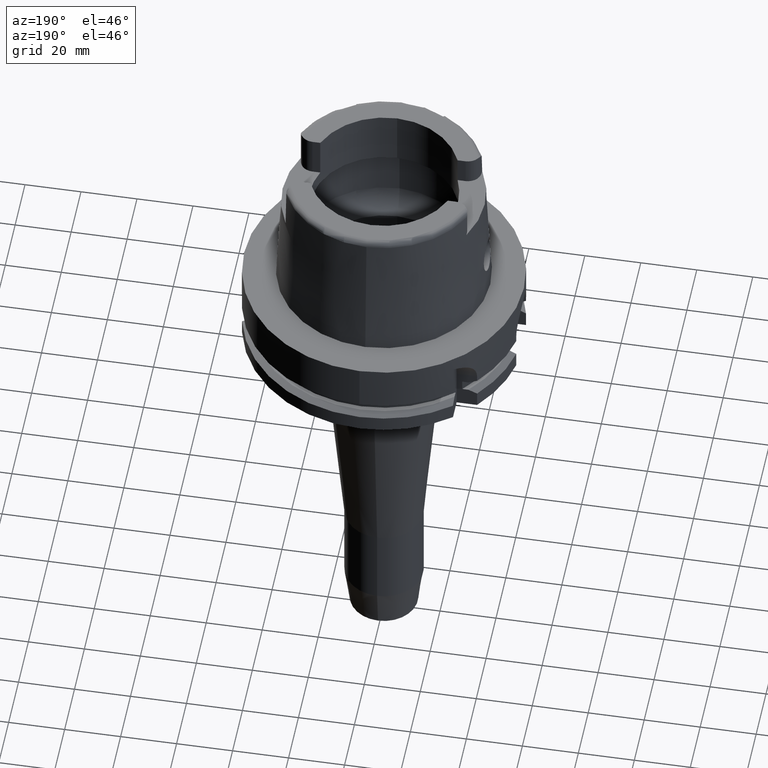
[diagram: clean part render]
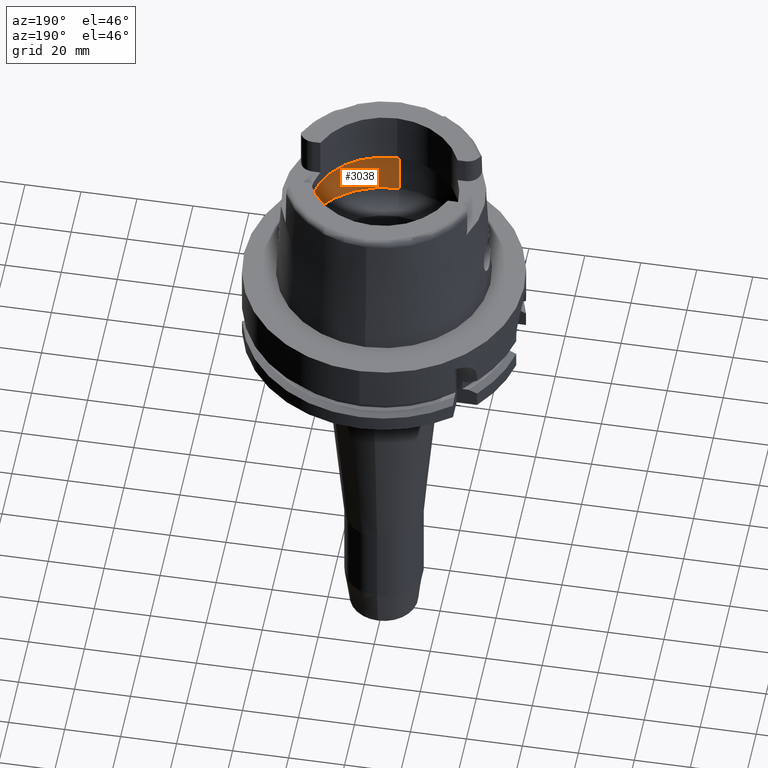
[diagram: same view with one face highlighted and labeled with its STEP entity id]
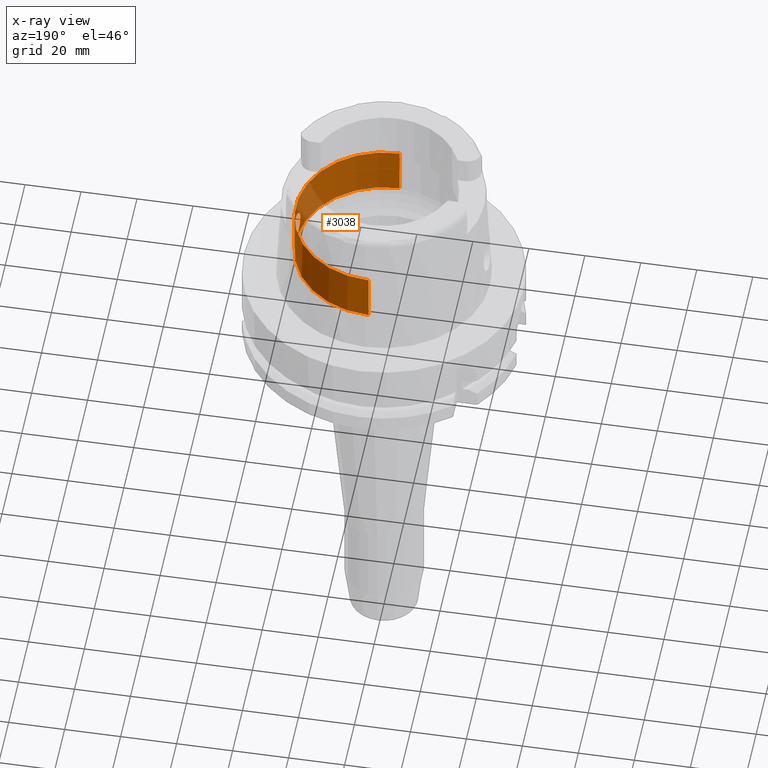
[diagram: x-ray of the same camera — body ghosted, the highlighted face saturated]
A machine part, auxiliary view. The second image highlights one B-rep face of the part: STEP entity #3038.
The next image is the same camera in x-ray: the body ghosted, the highlighted face saturated — about 10% of this face is hidden behind the body in this view.
In plain terms, the highlighted cylindrical surface (partial cylindrical patch) has radius 31.5 mm, axis along (0, 0, 1).
Its self-contained STEP definition (entity closure, byte-faithful):
#536=CARTESIAN_POINT('',(0.E0,0.E0,2.711662432703E1));
#537=DIRECTION('',(0.E0,0.E0,1.E0));
#538=DIRECTION('',(0.E0,-1.E0,0.E0));
#539=AXIS2_PLACEMENT_3D('',#536,#537,#538);
#585=DIRECTION('',(0.E0,5.000414258470E-14,1.E0));
#586=VECTOR('',#585,1.762E1);
#587=CARTESIAN_POINT('',(0.E0,-3.15E1,9.496624327026E0));
#588=LINE('',#587,#586);
#686=CARTESIAN_POINT('',(0.E0,0.E0,9.496624327026E0));
#687=DIRECTION('',(0.E0,0.E0,-1.E0));
#688=DIRECTION('',(9.971171061384E-1,-7.587803796965E-2,0.E0));
#689=AXIS2_PLACEMENT_3D('',#686,#687,#688);
#710=CARTESIAN_POINT('',(0.E0,0.E0,9.496624327026E0));
#711=DIRECTION('',(0.E0,0.E0,-1.E0));
#712=DIRECTION('',(0.E0,1.E0,0.E0));
#713=AXIS2_PLACEMENT_3D('',#710,#711,#712);
#735=CARTESIAN_POINT('',(3.140918884336E1,-2.390158196044E0,9.496624327026E0));
#736=CARTESIAN_POINT('',(3.137370284659E1,-2.856481461010E0,9.699152091801E0));
#737=CARTESIAN_POINT('',(3.128859474453E1,-3.707400145346E0,1.020433824448E1));
#738=CARTESIAN_POINT('',(3.113928099984E1,-4.784492553653E0,1.127536880454E1));
#739=CARTESIAN_POINT('',(3.100881912169E1,-5.551490012943E0,1.256688766916E1));
#740=CARTESIAN_POINT('',(3.092778419711E1,-5.977993215389E0,1.399743542080E1));
#741=CARTESIAN_POINT('',(3.091518771352E1,-6.041374145570E0,1.549305405197E1));
#742=CARTESIAN_POINT('',(3.097430983652E1,-5.737293320473E0,1.695757698452E1));
#743=CARTESIAN_POINT('',(3.109203742567E1,-5.076006323066E0,1.831579404761E1));
#744=CARTESIAN_POINT('',(3.123897485970E1,-4.097830971331E0,1.946762004123E1));
#745=CARTESIAN_POINT('',(3.137831011200E1,-2.871978416125E0,2.033914448703E1));
#746=CARTESIAN_POINT('',(3.147664429815E1,-1.469940970168E0,2.087917017838E1));
#747=CARTESIAN_POINT('',(3.15E1,-5.000265199680E-1,2.1E1));
#748=CARTESIAN_POINT('',(3.15E1,0.E0,2.1E1));
#753=CARTESIAN_POINT('',(3.15E1,0.E0,2.1E1));
#754=CARTESIAN_POINT('',(3.15E1,5.029119195974E-1,2.1E1));
#755=CARTESIAN_POINT('',(3.147637481607E1,1.477572854986E0,2.087779123833E1));
#756=CARTESIAN_POINT('',(3.137725459066E1,2.883876280390E0,2.033316137464E1));
#757=CARTESIAN_POINT('',(3.123731083332E1,4.110405734289E0,1.945636337079E1));
#758=CARTESIAN_POINT('',(3.109031368610E1,5.086357039737E0,1.830005087919E1));
#759=CARTESIAN_POINT('',(3.097316298175E1,5.743339975134E0,1.693960888538E1));
#760=CARTESIAN_POINT('',(3.091492818840E1,6.042674180618E0,1.547524432273E1));
#761=CARTESIAN_POINT('',(3.092834596188E1,5.975139974964E0,1.398185818563E1));
#762=CARTESIAN_POINT('',(3.100979198357E1,5.546121169298E0,1.255536329905E1));
#763=CARTESIAN_POINT('',(3.114017301620E1,4.778633834378E0,1.126840905464E1));
#764=CARTESIAN_POINT('',(3.128902322664E1,3.703485308848E0,1.020177646228E1));
#765=CARTESIAN_POINT('',(3.137382032916E1,2.854937616644E0,9.698481588371E0));
#766=CARTESIAN_POINT('',(3.140918884336E1,2.390158196044E0,9.496624327026E0));
#771=DIRECTION('',(0.E0,-5.000414258470E-14,1.E0));
#772=VECTOR('',#771,1.762E1);
#773=CARTESIAN_POINT('',(0.E0,3.15E1,9.496624327026E0));
#774=LINE('',#773,#772);
#2335=CARTESIAN_POINT('',(0.E0,3.15E1,2.711662432703E1));
#2336=VERTEX_POINT('',#2335);
#2337=CARTESIAN_POINT('',(0.E0,-3.15E1,2.711662432703E1));
#2338=VERTEX_POINT('',#2337);
#2341=CARTESIAN_POINT('',(0.E0,-3.15E1,9.496624327026E0));
#2342=VERTEX_POINT('',#2341);
#2343=CARTESIAN_POINT('',(0.E0,3.15E1,9.496624327026E0));
#2344=VERTEX_POINT('',#2343);
#2349=VERTEX_POINT('',#735);
#2350=VERTEX_POINT('',#748);
#2352=VERTEX_POINT('',#766);
#3023=CARTESIAN_POINT('',(0.E0,0.E0,-1.7575E2));
#3024=DIRECTION('',(0.E0,0.E0,1.E0));
#3025=DIRECTION('',(0.E0,1.E0,0.E0));
#3026=AXIS2_PLACEMENT_3D('',#3023,#3024,#3025);
#3027=CYLINDRICAL_SURFACE('',#3026,3.15E1);
#3028=ORIENTED_EDGE('',*,*,#3012,.T.);
#3030=ORIENTED_EDGE('',*,*,#3029,.T.);
#3031=ORIENTED_EDGE('',*,*,#3000,.F.);
#3032=ORIENTED_EDGE('',*,*,#2930,.T.);
#3033=ORIENTED_EDGE('',*,*,#2900,.F.);
#3034=ORIENTED_EDGE('',*,*,#2927,.F.);
#3035=ORIENTED_EDGE('',*,*,#2994,.F.);
#3036=EDGE_LOOP('',(#3028,#3030,#3031,#3032,#3033,#3034,#3035));
#3037=FACE_OUTER_BOUND('',#3036,.F.);
#540=CIRCLE('',#539,3.15E1);
#690=CIRCLE('',#689,3.15E1);
#714=CIRCLE('',#713,3.15E1);
#749=B_SPLINE_CURVE_WITH_KNOTS('',3,(#735,#736,#737,#738,#739,#740,#741,#742,
#743,#744,#745,#746,#747,#748),.UNSPECIFIED.,.F.,.F.,(4,1,1,1,1,1,1,1,1,1,1,4),(
0.E0,9.090909090909E-2,1.818181818182E-1,2.727272727273E-1,3.636363636364E-1,
4.545454545455E-1,5.454545454545E-1,6.363636363636E-1,7.272727272727E-1,
8.181818181818E-1,9.090909090909E-1,1.E0),.UNSPECIFIED.);
#767=B_SPLINE_CURVE_WITH_KNOTS('',3,(#753,#754,#755,#756,#757,#758,#759,#760,
#761,#762,#763,#764,#765,#766),.UNSPECIFIED.,.F.,.F.,(4,1,1,1,1,1,1,1,1,1,1,4),(
0.E0,9.090909090909E-2,1.818181818182E-1,2.727272727273E-1,3.636363636364E-1,
4.545454545455E-1,5.454545454545E-1,6.363636363636E-1,7.272727272727E-1,
8.181818181818E-1,9.090909090909E-1,1.E0),.UNSPECIFIED.);
#2900=EDGE_CURVE('',#2338,#2336,#540,.T.);
#2927=EDGE_CURVE('',#2342,#2338,#588,.T.);
#2930=EDGE_CURVE('',#2344,#2336,#774,.T.);
#2994=EDGE_CURVE('',#2349,#2342,#690,.T.);
#3000=EDGE_CURVE('',#2344,#2352,#714,.T.);
#3012=EDGE_CURVE('',#2349,#2350,#749,.T.);
#3029=EDGE_CURVE('',#2350,#2352,#767,.T.);
#3038=ADVANCED_FACE('',(#3037),#3027,.F.);